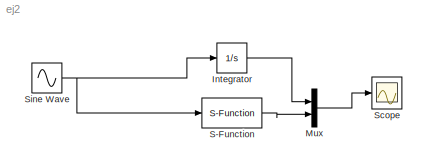
MODEL ej2
KIND model
BLOCK [Integrator] Integrator
  InitialCondition = -7
  LimitOutput = on
  Ports = [1, 1]
  UpperSaturationLimit = 5
BLOCK [Mux] Mux
  DisplayOption = bar
  Inputs = 2
  Ports = [2, 1]
BLOCK [S-Function] S-Function
  FunctionName = Ej2integrador
  Parameters = -7 5 -10
  Ports = [1, 1]
BLOCK [Scope] Scope
  DataFormat = StructureWithTime
  Floating = off
  NumInputPorts = 1
  Ports = [1]
  SampleTime = 0
  ZoomMode = xonly
BLOCK [Sin] Sine Wave
  Amplitude = 7
  Ports = [0, 1]
  SampleTime = 0
  SineType = Time based
LINE Integrator:1 -> Mux:1
LINE Mux:1 -> Scope:1
LINE S-Function:1 -> Mux:2
NET Sine Wave:1 -> Integrator:1, S-Function:1
note: NET lines group one-source signal fan-out (src -> all destinations, sorted); 1:1 wires keep LINE
